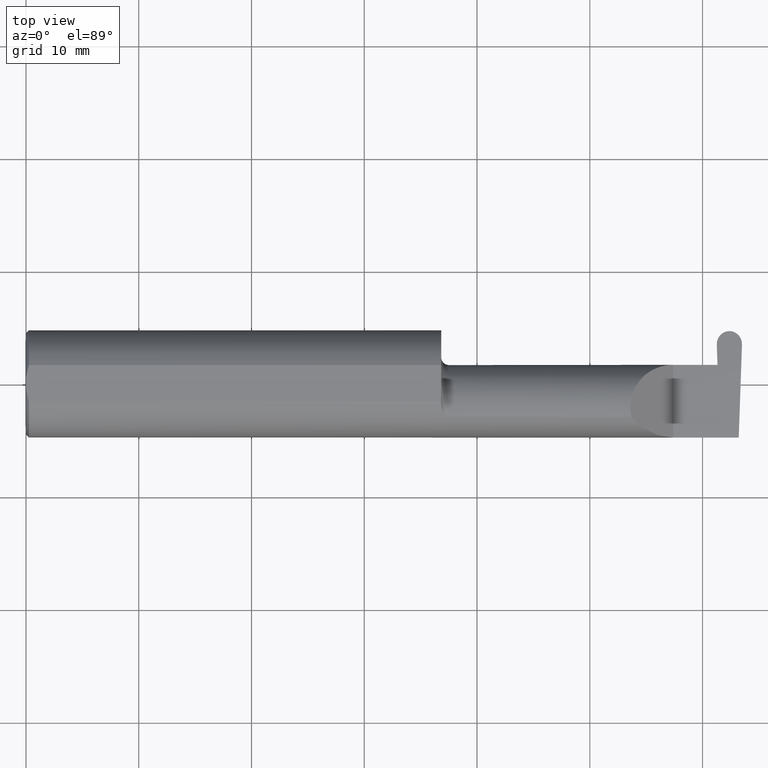
[diagram: clean part render]
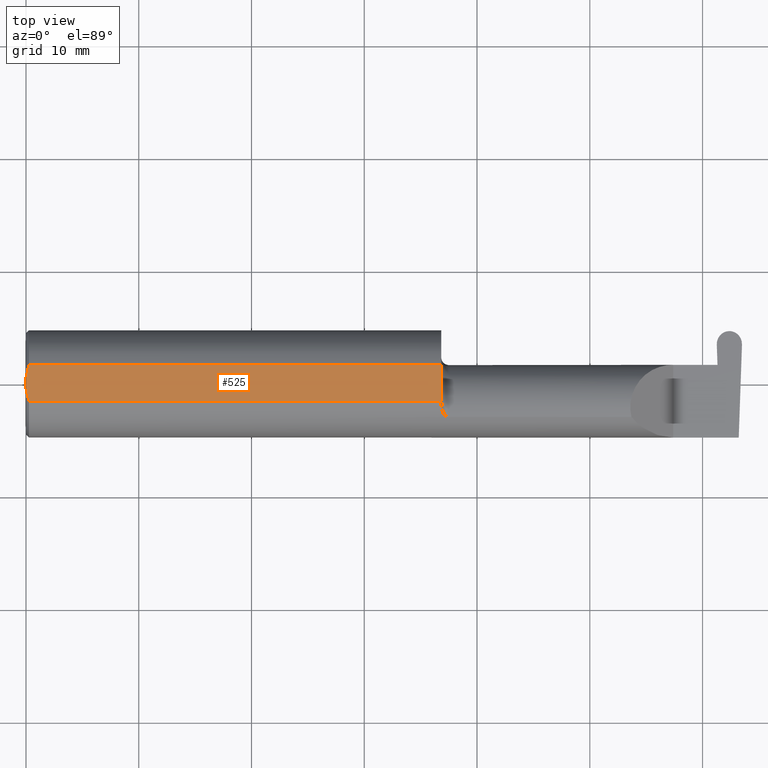
[diagram: same view with one face highlighted and labeled with its STEP entity id]
A machine part, top view. The second image highlights one B-rep face of the part: STEP entity #525.
In plain terms, the highlighted planar face has unit normal (0, 0, 1).
Its self-contained STEP definition (entity closure, byte-faithful):
#24 = VERTEX_POINT ( 'NONE', #350 ) ;
#28 = CARTESIAN_POINT ( 'NONE',  ( 1.450000000000000178, 0.1873499999999997390, 0.1763499999999999235 ) ) ;
#36 = EDGE_CURVE ( 'NONE', #399, #284, #626, .T. ) ;
#50 = DIRECTION ( 'NONE',  ( -1.000000000000000000, -0.000000000000000000, -0.000000000000000000 ) ) ;
#55 = EDGE_CURVE ( 'NONE', #284, #612, #645, .T. ) ;
#72 = VERTEX_POINT ( 'NONE', #90 ) ;
#79 = CARTESIAN_POINT ( 'NONE',  ( 0.005151108632379722968, -0.04888864921576022843, 0.1763499999999999235 ) ) ;
#90 = CARTESIAN_POINT ( 'NONE',  ( 0.000000000000000000, -0.01880691362238934641, 0.1763499999999999235 ) ) ;
#103 = EDGE_LOOP ( 'NONE', ( #281, #330, #574, #376, #427, #358 ) ) ;
#127 = EDGE_CURVE ( 'NONE', #72, #24, #692, .T. ) ;
#148 = CARTESIAN_POINT ( 'NONE',  ( 0.01000000000000013205, 0.06325108694718235836, 0.1763499999999999235 ) ) ;
#150 = DIRECTION ( 'NONE',  ( -7.100831337523756508E-17, 1.000000000000000000, 0.000000000000000000 ) ) ;
#161 = CARTESIAN_POINT ( 'NONE',  ( 1.450000000000000178, -0.06325108694718287183, 0.1763499999999999235 ) ) ;
#179 = DIRECTION ( 'NONE',  ( 1.000000000000000000, 0.000000000000000000, 0.000000000000000000 ) ) ;
#195 = EDGE_CURVE ( 'NONE', #24, #591, #249, .T. ) ;
#201 = CARTESIAN_POINT ( 'NONE',  ( 0.000000000000000000, 0.01880691362238934988, 0.1763499999999999235 ) ) ;
#204 = FACE_OUTER_BOUND ( 'NONE', #103, .T. ) ;
#249 = B_SPLINE_CURVE_WITH_KNOTS ( 'NONE', 3,
 ( #201, #414, #639, #148 ),
 .UNSPECIFIED., .F., .F.,
 ( 4, 4 ),
 ( 0.01188664626022242071, 0.01304646959483746725 ),
 .UNSPECIFIED. ) ;
#267 = DIRECTION ( 'NONE',  ( 0.000000000000000000, 0.000000000000000000, 1.000000000000000000 ) ) ;
#281 = ORIENTED_EDGE ( 'NONE', *, *, #36, .T. ) ;
#284 = VERTEX_POINT ( 'NONE', #161 ) ;
#287 = CARTESIAN_POINT ( 'NONE',  ( 0.000000000000000000, -0.06325108694718235836, 0.1763499999999999235 ) ) ;
#298 = CARTESIAN_POINT ( 'NONE',  ( 0.001595548104417008695, -0.03385300050298640367, 0.1763499999999999235 ) ) ;
#314 = CARTESIAN_POINT ( 'NONE',  ( 0.000000000000000000, 0.06325108694718235836, 0.1763499999999999235 ) ) ;
#330 = ORIENTED_EDGE ( 'NONE', *, *, #55, .T. ) ;
#336 = VECTOR ( 'NONE', #150, 39.37007874015748143 ) ;
#337 = VECTOR ( 'NONE', #50, 39.37007874015748143 ) ;
#349 = CARTESIAN_POINT ( 'NONE',  ( 0.01000000000000013205, -0.06325108694718235836, 0.1763499999999999235 ) ) ;
#350 = CARTESIAN_POINT ( 'NONE',  ( 0.000000000000000000, 0.01880691362238934988, 0.1763499999999999235 ) ) ;
#358 = ORIENTED_EDGE ( 'NONE', *, *, #397, .F. ) ;
#366 = DIRECTION ( 'NONE',  ( -0.000000000000000000, 1.000000000000000000, -0.000000000000000000 ) ) ;
#376 = ORIENTED_EDGE ( 'NONE', *, *, #195, .F. ) ;
#397 = EDGE_CURVE ( 'NONE', #399, #72, #486, .T. ) ;
#398 = CARTESIAN_POINT ( 'NONE',  ( 0.000000000000000000, -0.01880691362238934641, 0.1763499999999999235 ) ) ;
#399 = VERTEX_POINT ( 'NONE', #611 ) ;
#414 = CARTESIAN_POINT ( 'NONE',  ( 0.001616639753276021213, 0.03405189565400638246, 0.1763499999999999235 ) ) ;
#416 = PLANE ( 'NONE',  #522 ) ;
#427 = ORIENTED_EDGE ( 'NONE', *, *, #127, .F. ) ;
#472 = CARTESIAN_POINT ( 'NONE',  ( 0.000000000000000000, 0.1873499999999998500, 0.1763499999999999235 ) ) ;
#474 = LINE ( 'NONE', #314, #337 ) ;
#486 = B_SPLINE_CURVE_WITH_KNOTS ( 'NONE', 3,
 ( #349, #79, #298, #398 ),
 .UNSPECIFIED., .F., .F.,
 ( 4, 4 ),
 ( 0.009771445421851331775, 0.01092787937989104369 ),
 .UNSPECIFIED. ) ;
#514 = EDGE_CURVE ( 'NONE', #612, #591, #474, .T. ) ;
#522 = AXIS2_PLACEMENT_3D ( 'NONE', #585, #267, #589 ) ;
#525 = ADVANCED_FACE ( 'NONE', ( #204 ), #416, .T. ) ;
#542 = CARTESIAN_POINT ( 'NONE',  ( 0.01000000000000013205, 0.06325108694718235836, 0.1763499999999999235 ) ) ;
#544 = VECTOR ( 'NONE', #179, 39.37007874015748143 ) ;
#574 = ORIENTED_EDGE ( 'NONE', *, *, #514, .T. ) ;
#585 = CARTESIAN_POINT ( 'NONE',  ( 2.876828993045917215, 0.1873499999999998500, 0.1763499999999999235 ) ) ;
#586 = VECTOR ( 'NONE', #366, 39.37007874015748143 ) ;
#589 = DIRECTION ( 'NONE',  ( 1.000000000000000000, 0.000000000000000000, -0.000000000000000000 ) ) ;
#591 = VERTEX_POINT ( 'NONE', #542 ) ;
#592 = CARTESIAN_POINT ( 'NONE',  ( 1.450000000000000178, 0.06325108694718235836, 0.1763499999999999235 ) ) ;
#611 = CARTESIAN_POINT ( 'NONE',  ( 0.01000000000000013205, -0.06325108694718235836, 0.1763499999999999235 ) ) ;
#612 = VERTEX_POINT ( 'NONE', #592 ) ;
#626 = LINE ( 'NONE', #287, #544 ) ;
#639 = CARTESIAN_POINT ( 'NONE',  ( 0.005155213631852488369, 0.04890080824240059659, 0.1763499999999999235 ) ) ;
#645 = LINE ( 'NONE', #28, #336 ) ;
#692 = LINE ( 'NONE', #472, #586 ) ;